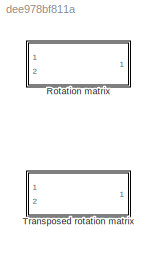
MODEL slx_dee978bf811a
KIND library
CONFIG AbsTol = auto
CONFIG EnableMultiTasking = off
CONFIG FixedStep = auto
CONFIG MaxStep = auto
CONFIG MinStep = auto
CONFIG RelTol = 1e-3
CONFIG SampleTimeConstraint = Unconstrained
CONFIG Solver = VariableStepAuto
CONFIG SolverName = VariableStepAuto
CONFIG StartTime = 0.0
CONFIG StopTime = 10.0
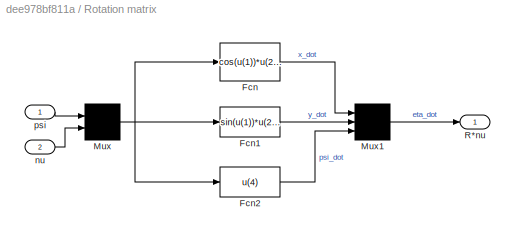
BLOCK [SubSystem] Rotation matrix
  Ports = [2, 1]
  RequestExecContextInheritance = off
BLOCK [Fcn] Rotation matrix/Fcn
  Expr = cos(u(1))*u(2)-sin(u(1))*u(3)
BLOCK [Fcn] Rotation matrix/Fcn1
  Expr = sin(u(1))*u(2)+cos(u(1))*u(3)
BLOCK [Fcn] Rotation matrix/Fcn2
  Expr = u(4)
BLOCK [Mux] Rotation matrix/Mux
  Inputs = 2
  Ports = [2, 1]
BLOCK [Mux] Rotation matrix/Mux1
  Inputs = 3
  Ports = [3, 1]
BLOCK [Outport] Rotation matrix/R*nu
  IconDisplay = Port number
BLOCK [Inport] Rotation matrix/nu
  IconDisplay = Port number
  Port = 2
BLOCK [Inport] Rotation matrix/psi
  IconDisplay = Port number
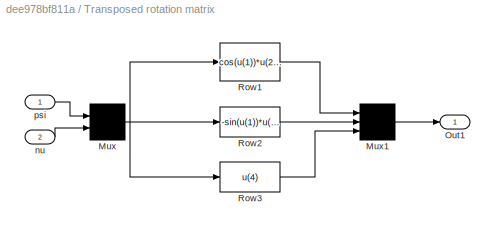
BLOCK [SubSystem] Transposed rotation matrix
  Ports = [2, 1]
  RequestExecContextInheritance = off
BLOCK [Mux] Transposed rotation matrix/Mux
  Inputs = 2
  Ports = [2, 1]
BLOCK [Mux] Transposed rotation matrix/Mux1
  Inputs = 3
  Ports = [3, 1]
BLOCK [Outport] Transposed rotation matrix/Out1
  IconDisplay = Port number
BLOCK [Fcn] Transposed rotation matrix/Row1
  Expr = cos(u(1))*u(2)+sin(u(1))*u(3)
BLOCK [Fcn] Transposed rotation matrix/Row2
  Expr = -sin(u(1))*u(2)+cos(u(1))*u(3)
BLOCK [Fcn] Transposed rotation matrix/Row3
  Expr = u(4)
BLOCK [Inport] Transposed rotation matrix/nu
  IconDisplay = Port number
  Port = 2
BLOCK [Inport] Transposed rotation matrix/psi
  IconDisplay = Port number
LINE Rotation matrix/Fcn1:1 -> Rotation matrix/Mux1:2
LINE Rotation matrix/Fcn2:1 -> Rotation matrix/Mux1:3
LINE Rotation matrix/Fcn:1 -> Rotation matrix/Mux1:1
LINE Rotation matrix/Mux1:1 -> Rotation matrix/R*nu:1
NET Rotation matrix/Mux:1 -> Rotation matrix/Fcn1:1, Rotation matrix/Fcn2:1, Rotation matrix/Fcn:1
LINE Rotation matrix/nu:1 -> Rotation matrix/Mux:2
LINE Rotation matrix/psi:1 -> Rotation matrix/Mux:1
LINE Transposed rotation matrix/Mux1:1 -> Transposed rotation matrix/Out1:1
NET Transposed rotation matrix/Mux:1 -> Transposed rotation matrix/Row1:1, Transposed rotation matrix/Row2:1, Transposed rotation matrix/Row3:1
LINE Transposed rotation matrix/Row1:1 -> Transposed rotation matrix/Mux1:1
LINE Transposed rotation matrix/Row2:1 -> Transposed rotation matrix/Mux1:2
LINE Transposed rotation matrix/Row3:1 -> Transposed rotation matrix/Mux1:3
LINE Transposed rotation matrix/nu:1 -> Transposed rotation matrix/Mux:2
LINE Transposed rotation matrix/psi:1 -> Transposed rotation matrix/Mux:1
note: NET lines group one-source signal fan-out (src -> all destinations, sorted); 1:1 wires keep LINE
